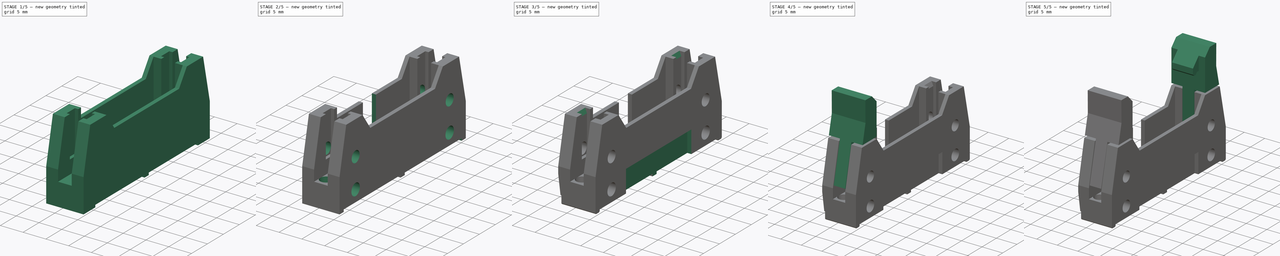
[diagram: build sequence overview — one tinted view per stage of 5, left to right]
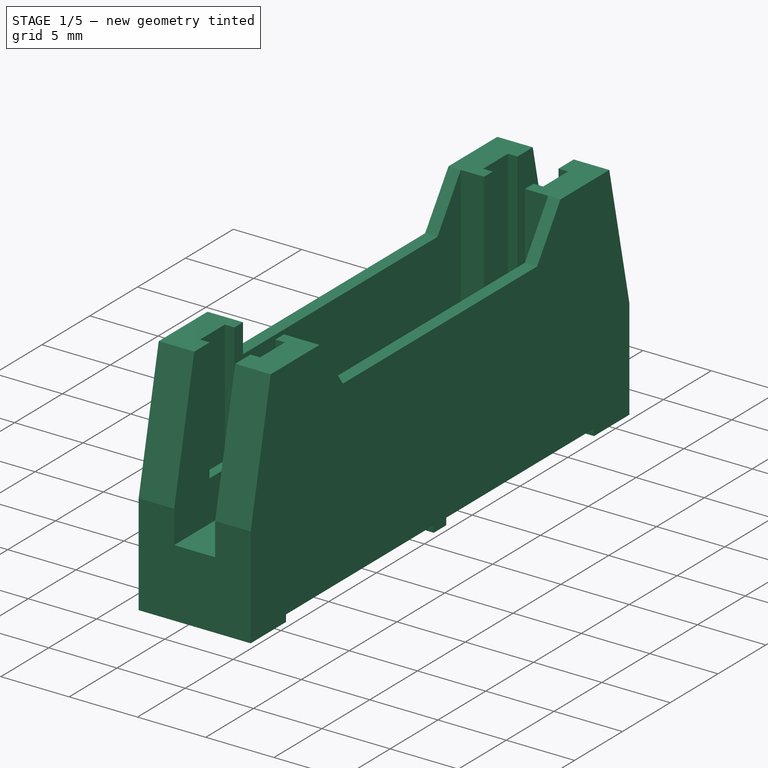
[diagram: stage 1 of 5 — iso view after this stage's code; geometry added in this stage tinted green]
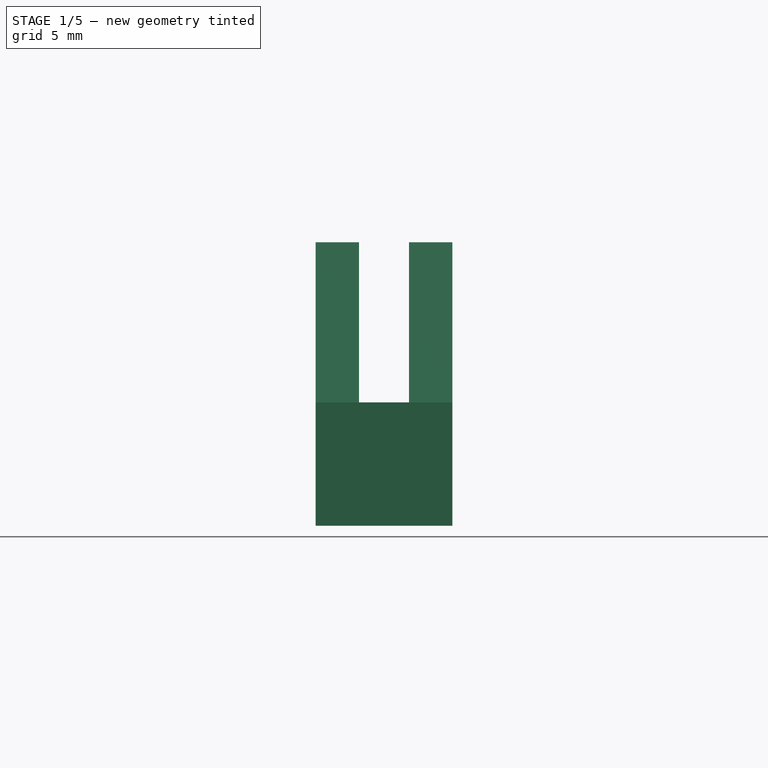
[diagram: stage 1 of 5 — front view after this stage's code; geometry added in this stage tinted green]
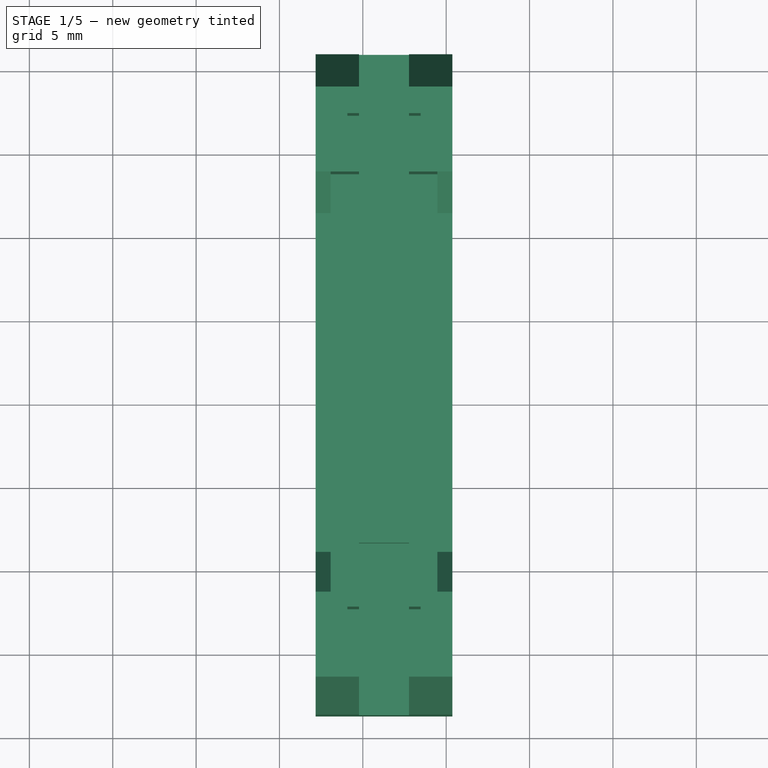
[diagram: stage 1 of 5 — top view after this stage's code; geometry added in this stage tinted green]
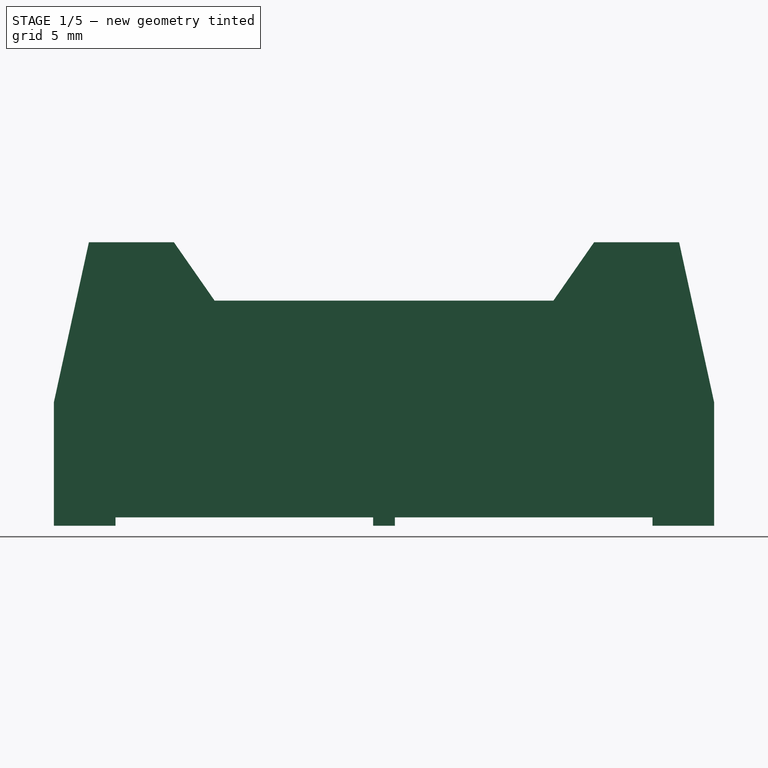
[diagram: stage 1 of 5 — right view after this stage's code; geometry added in this stage tinted green]
FCSTD DOCUMENT  (FreeCAD 1.0R38641 +468 (Git))
Label: XG4A-xx31-1
License: All rights reserved
objects: Sketcher::SketchObject×17, PartDesign::Pocket×13, PartDesign::Mirrored×5, PartDesign::Plane×4, PartDesign::Pad×4, PartDesign::Chamfer×4, PartDesign::Body×4, PartDesign::Line×2, Spreadsheet::Sheet×1, Part::FeaturePython×1, PartDesign::FeatureBase×1, Part::Mirroring×1, Part::Compound×1, Part::Cut×1
note: 123 computed .brp shape members not serialized (recipe doc carries the construction recipe); baked Part::Feature solids carry a one-line shape summary decoded from their .brp

FEATURE [Spreadsheet::Sheet] Spreadsheet  label="Master"
  cells = A1='Constants; A2='pins; B2(pins)=16; C2='Number of pins: 10, 14, 16, 20, 26, 30, 34, 40, 50, 60, 64; A3='pin_pitch; B3(pin_pitch)==2.54 mm; C3='Pin pitch; A5='height; B5(height)==17 mm; C5='Height of housing; A6='width; B6(width)==8.2 mm; C6='Width of housing; A8='Calculated; A9='pins row; B9(pins_row)==pins / 2; C9='Pins per row; A10='length mod; B10(len_mod)==pins == 16 ? -1 : (pins == 26 ? -1 : 0); A11='length total; B11(length_tot)==ceil(length_pin * 10) / 10 + 21.8 mm; C11='Dim A: Length of housing; A12='length opening; B12(length_open)==length_tot - 14.5 mm - len_mod * 0.1 mm; C12='Dim B: Length of opening; A13='length pin; B13(length_pin)==(pins_row - 1) * pin_pitch; C13='Dim C: Total with of pins; A14='length side hole; B14(length_hole)==length_tot - 10.2 mm - len_mod * 0.1 mm; C14='Dim D: Side hole/Eject lever pivot dimension; A15='length mount; B15(length_mnt)==length_tot - 4.1 mm - len_mod * 0.1 mm; C15='Dim E: Bottom mounting hole dimension; A17='center; B17(center)==length_pin / 2; C17='Center offset for pin 1 at origin
FEATURE [PartDesign::Line] DatumLine
  AttacherType = Attacher::AttachEngineLine
  Length = 20
  MapMode = 18
  Placement = pos=(1.27,-8.89,0) rot=(0,0,1;0rad)
  ResizeMode = 0
  expr: .Placement.Base.x = <<Master>>.pin_pitch / 2
  expr: .Placement.Base.y = -<<Master>>.center
FEATURE [PartDesign::Plane] DatumPlane
  AttachmentOffset = pos=(0,0,1.27) rot=(0,0,1;0rad)
  AttachmentSupport = -> [YZ_Plane]
  Length = 60
  MapMode = 5
  Placement = pos=(1.27,0,0) rot=(0.57735,0.57735,0.57735;2.0944rad)
  ResizeMode = 0
  Width = 60
  expr: .AttachmentOffset.Base.z = <<Master>>.pin_pitch / 2
FEATURE [PartDesign::Plane] DatumPlane001
  AttachmentOffset = pos=(0,0,8.89) rot=(0,0,1;0rad)
  AttachmentSupport = -> [XZ_Plane]
  Length = 60
  MapMode = 5
  Placement = pos=(0,-8.89,2e-15) rot=(1,0,0;1.5708rad)
  ResizeMode = 0
  Width = 60
  expr: .AttachmentOffset.Base.z = <<Master>>.center
FEATURE [PartDesign::Plane] DatumPlane002
  AttachmentOffset = pos=(0,0,17) rot=(0,0,1;0rad)
  AttachmentSupport = -> [XY_Plane]
  Length = 60
  MapMode = 5
  Placement = pos=(0,0,17) rot=(0,0,1;0rad)
  ResizeMode = 0
  Width = 60
  expr: .AttachmentOffset.Base.z = <<Master>>.height
FEATURE [Sketcher::SketchObject] Sketch
  ArcFitTolerance = 0
  AttachmentSupport = -> [DatumPlane]
  ExternalGeometry = -> [DatumLine]
  FullyConstrained = true
  MakeInternals = false
  MapMode = 5
  Placement = pos=(1.27,0,0) rot=(0.57735,0.57735,0.57735;2.0944rad)
  expr: Constraints[25] = <<Master>>.length_tot
  expr: Constraints[26] = <<Master>>.length_open
  expr: Constraints[27] = <<Master>>.height
  expr: Constraints[50] = <<Master>>.length_open - 4.88 mm
  expr: Constraints[67] = <<Master>>.length_tot - 3.7 mm * 2
  expr: Constraints[68] = <<Master>>.length_open + 5.1 mm * 2
  sketch-geometry (25):
    g0: LineSegment StartX=7.21 StartY=0.5 StartZ=0 EndX=-8.24 EndY=0.5 EndZ=0
    g1: LineSegment StartX=-24.99 StartY=0.5 StartZ=0 EndX=-24.99 EndY=0 EndZ=0
    g2: LineSegment StartX=-24.99 StartY=0 StartZ=0 EndX=-28.69 EndY=0 EndZ=0
    g3: LineSegment StartX=-28.69 StartY=0 StartZ=0 EndX=-28.69 EndY=7.4 EndZ=0
    g4: LineSegment StartX=-28.69 StartY=7.4 StartZ=0 EndX=-26.59 EndY=17 EndZ=0
    g5: LineSegment StartX=-26.59 StartY=17 StartZ=0 EndX=-21.49 EndY=17 EndZ=0
    g6: LineSegment StartX=-21.49 StartY=17 StartZ=0 EndX=-19.05 EndY=13.5 EndZ=0
    g7: LineSegment StartX=-19.05 StartY=13.5 StartZ=0 EndX=1.27 EndY=13.5 EndZ=0
    g8: LineSegment StartX=1.27 StartY=13.5 StartZ=0 EndX=3.71 EndY=17 EndZ=0
    g9: LineSegment StartX=3.71 StartY=17 StartZ=0 EndX=8.81 EndY=17 EndZ=0
    g10: LineSegment StartX=8.81 StartY=17 StartZ=0 EndX=10.91 EndY=7.4 EndZ=0
    g11: LineSegment StartX=10.91 StartY=7.4 StartZ=0 EndX=10.91 EndY=0 EndZ=0
    g12: LineSegment StartX=10.91 StartY=0 StartZ=0 EndX=7.21 EndY=0 EndZ=0
    g13: LineSegment StartX=7.21 StartY=0 StartZ=0 EndX=7.21 EndY=0.5 EndZ=0
    g14: LineSegment StartX=-9.54 StartY=0.5 StartZ=0 EndX=-9.54 EndY=0 EndZ=0
    g15: LineSegment StartX=-9.54 StartY=0 StartZ=0 EndX=-8.24 EndY=0 EndZ=0
    g16: LineSegment StartX=-8.24 StartY=0 StartZ=0 EndX=-8.24 EndY=0.5 EndZ=0
    g17: LineSegment StartX=-9.54 StartY=0.5 StartZ=0 EndX=-24.99 EndY=0.5 EndZ=0
    g18: LineSegment [constr] StartX=-19.05 StartY=7.4 StartZ=0 EndX=-19.05 EndY=13.5 EndZ=0
    g19: LineSegment [constr] StartX=1.27 StartY=13.5 StartZ=0 EndX=1.27 EndY=7.4 EndZ=0
    g20: LineSegment [constr] StartX=1.27 StartY=7.4 StartZ=0 EndX=-19.05 EndY=7.4 EndZ=0
    g21: LineSegment [constr] StartX=1.27 StartY=7.4 StartZ=0 EndX=10.91 EndY=7.4 EndZ=0
    g22: LineSegment [constr] StartX=-19.05 StartY=7.4 StartZ=0 EndX=-28.69 EndY=7.4 EndZ=0
    g23: LineSegment [constr] StartX=-21.49 StartY=17 StartZ=0 EndX=-8.89 EndY=17 EndZ=0
    g24: LineSegment [constr] StartX=-8.89 StartY=17 StartZ=0 EndX=3.71 EndY=17 EndZ=0
  constraints (69):
    c: Horizontal(g0)
    c: Coincident(g17,g1)
    c: Coincident(g1,g2)
    c: Horizontal(g2)
    c: Coincident(g2,g3)
    c: Coincident(g3,g4)
    c: Coincident(g4,g5)
    c: Horizontal(g5)
    c: Coincident(g5,g6)
    c: Coincident(g6,g7)
    c: Coincident(g7,g8)
    c: Coincident(g8,g9)
    c: Horizontal(g9)
    c: Coincident(g9,g10)
    c: Coincident(g10,g11)
    c: Vertical(g11)
    c: Coincident(g11,g12)
    c: Horizontal(g12)
    c: Coincident(g12,g13)
    c: Coincident(g13,g0)
    c: Vertical(g1)
    c: Vertical(g13)
    c: Vertical(g3)
    c: Equal(g2,g12)
    c: PointOnObject(g1,g-1)
    c: DistanceX(g2,g11) = 39.6
    c: DistanceX(g5,g8) = 25.2
    c: DistanceY(g2,g4) = 17
    c: Equal(g3,g11)
    c: Equal(g5,g9)
    c: DistanceY(g3) = 7.4
    c: Coincident(g14,g15)
    c: PointOnObject(g15,g-1)
    c: Coincident(g15,g16)
    c: Vertical(g16)
    c: Vertical(g14)
    c: Coincident(g0,g16)
    c: Coincident(g17,g14)
    c: Tangent(g0,g17)
    c: DistanceX(g15) = 1.3
    c: Horizontal(g15)
    c: Symmetric(g1,g12,g-3)
    c: Equal(g17,g0)
    c: Distance(g1,g1) = 0.5
    c: DistanceY(g11,g7) = 13.5
    c: Coincident(g18,g6)
    c: Vertical(g18)
    c: Coincident(g7,g19)
    c: Vertical(g19)
    c: Horizontal(g7)
    c: DistanceX(g20,g20) = 20.32
    c: Coincident(g21,g19)
    c: Coincident(g21,g10)
    c: Horizontal(g21)
    c: Coincident(g22,g18)
    c: Coincident(g22,g3)
    c: Horizontal(g22)
    c: Equal(g22,g21)
    c: Coincident(g18,g20)
    c: Coincident(g20,g19)
    c: Coincident(g23,g5)
    c: Horizontal(g23)
    c: Coincident(g24,g8)
    c: Horizontal(g24)
    c: Equal(g24,g23)
    c: Coincident(g23,g24)
    c: PointOnObject(g23,g-3)
    c: DistanceX(g1,g12) = 32.2
    c: DistanceX(g4,g9) = 35.4
FEATURE [PartDesign::Pad] Pad
  Direction = (1,0,0)
  Length = 8.2
  Length2 = 10
  Midplane = true
  Placement = pos=(1.27,0,0) rot=(0.57735,0.57735,0.57735;2.0944rad)
  Profile = -> Sketch
  ReferenceAxis = -> Sketch [N_Axis]
  Suppressed = false
  Type = 0
  expr: Length = <<Master>>.width
FEATURE [Sketcher::SketchObject] Sketch001
  ArcFitTolerance = 1e-06
  AttachmentSupport = -> [DatumPlane002]
  ExternalGeometry = -> [DatumLine]
  FullyConstrained = true
  MakeInternals = false
  MapMode = 5
  Placement = pos=(0,0,17) rot=(0,0,1;0rad)
  expr: Constraints[10] = <<Master>>.length_open
  sketch-geometry (4):
    g0: LineSegment StartX=-1.93 StartY=3.71 StartZ=0 EndX=-1.93 EndY=-21.49 EndZ=0
    g1: LineSegment StartX=-1.93 StartY=-21.49 StartZ=0 EndX=4.47 EndY=-21.49 EndZ=0
    g2: LineSegment StartX=4.47 StartY=-21.49 StartZ=0 EndX=4.47 EndY=3.71 EndZ=0
    g3: LineSegment StartX=4.47 StartY=3.71 StartZ=0 EndX=-1.93 EndY=3.71 EndZ=0
  constraints (11):
    c: Coincident(g0,g1)
    c: Coincident(g1,g2)
    c: Coincident(g2,g3)
    c: Coincident(g3,g0)
    c: Vertical(g0)
    c: Vertical(g2)
    c: Horizontal(g1)
    c: Horizontal(g3)
    c: Symmetric(g0,g2,g-3)
    c: Distance(g3,g3) = 6.4
    c: DistanceY(g0,g0) = 25.2
FEATURE [PartDesign::Pocket] Pocket
  BaseFeature = -> Pad
  Direction = (0,0,-1)
  Length = 9.6
  Length2 = 5
  Placement = pos=(1.27,0,0) rot=(0.57735,0.57735,0.57735;2.0944rad)
  Profile = -> Sketch001
  ReferenceAxis = -> Sketch001 [N_Axis]
  Suppressed = false
  Type = 0
FEATURE [Sketcher::SketchObject] Sketch002
  ArcFitTolerance = 1e-06
  AttachmentSupport = -> [DatumPlane002]
  ExternalGeometry = -> [DatumLine]
  FullyConstrained = true
  MakeInternals = false
  MapMode = 5
  Placement = pos=(0,0,17) rot=(0,0,1;0rad)
  expr: Constraints[13] = <<Master>>.length_tot / 2
  sketch-geometry (5):
    g0: LineSegment StartX=-0.23 StartY=10.91 StartZ=0 EndX=-0.23 EndY=0.61 EndZ=0
    g1: LineSegment StartX=-0.23 StartY=0.61 StartZ=0 EndX=2.77 EndY=0.61 EndZ=0
    g2: LineSegment StartX=2.77 StartY=0.61 StartZ=0 EndX=2.77 EndY=10.91 EndZ=0
    g3: LineSegment StartX=2.77 StartY=10.91 StartZ=0 EndX=-0.23 EndY=10.91 EndZ=0
    g4: LineSegment [constr] StartX=1.27 StartY=-8.89 StartZ=0 EndX=1.27 EndY=10.91 EndZ=0
  constraints (14):
    c: Coincident(g0,g1)
    c: Coincident(g1,g2)
    c: Coincident(g2,g3)
    c: Coincident(g3,g0)
    c: Vertical(g0)
    c: Vertical(g2)
    c: Horizontal(g1)
    c: Horizontal(g3)
    c: DistanceY(g0,g0) = 10.3
    c: Distance(g3,g3) = 3
    c: Coincident(g4,g-3)
    c: PointOnObject(g4,g3)
    c: Symmetric(g1,g0,g4)
    c: DistanceY(g4,g2) = 19.8
FEATURE [PartDesign::Pocket] Pocket001
  BaseFeature = -> Pocket
  Direction = (0,0,-1)
  Length = 12
  Length2 = 5
  Placement = pos=(1.27,0,0) rot=(0.57735,0.57735,0.57735;2.0944rad)
  Profile = -> Sketch002
  ReferenceAxis = -> Sketch002 [N_Axis]
  Suppressed = false
  Type = 0
FEATURE [PartDesign::Mirrored] Mirrored
  BaseFeature = -> Pocket001
  MirrorPlane = -> DatumPlane001
  Originals = -> [Pocket001]
  Placement = pos=(1.27,0,0) rot=(0.57735,0.57735,0.57735;2.0944rad)
  Suppressed = false
  TransformMode = 0
FEATURE [Sketcher::SketchObject] Sketch003
  ArcFitTolerance = 1e-06
  AttachmentSupport = -> [DatumPlane002]
  ExternalGeometry = -> [DatumLine]
  FullyConstrained = true
  MakeInternals = false
  MapMode = 5
  Placement = pos=(0,0,17) rot=(0,0,1;0rad)
  expr: Constraints[15] = <<Master>>.length_open / 2 + 0.9 mm
  sketch-geometry (6):
    g0: LineSegment StartX=-0.93 StartY=7.21 StartZ=0 EndX=-0.93 EndY=4.61 EndZ=0
    g1: LineSegment StartX=-0.93 StartY=4.61 StartZ=0 EndX=3.47 EndY=4.61 EndZ=0
    g2: LineSegment StartX=3.47 StartY=4.61 StartZ=0 EndX=3.47 EndY=7.21 EndZ=0
    g3: LineSegment StartX=3.47 StartY=7.21 StartZ=0 EndX=-0.93 EndY=7.21 EndZ=0
    g4: LineSegment [constr] StartX=1.27 StartY=-8.89 StartZ=0 EndX=1.27 EndY=4.61 EndZ=0
    g5: LineSegment [constr] StartX=1.27 StartY=4.61 StartZ=0 EndX=1.27 EndY=7.21 EndZ=0
  constraints (16):
    c: Coincident(g0,g1)
    c: Coincident(g1,g2)
    c: Coincident(g2,g3)
    c: Coincident(g3,g0)
    c: Vertical(g0)
    c: Vertical(g2)
    c: Horizontal(g1)
    c: Horizontal(g3)
    c: Coincident(g4,g-3)
    c: PointOnObject(g4,g1)
    c: Symmetric(g1,g0,g4)
    c: Distance(g3,g3) = 4.4
    c: Distance(g0,g0) = 2.6
    c: Coincident(g5,g4)
    c: Symmetric(g3,g3,g5)
    c: DistanceY(g4,g4) = 13.5
FEATURE [PartDesign::Pocket] Pocket002
  BaseFeature = -> Mirrored
  Direction = (0,0,-1)
  Length = 9
  Length2 = 5
  Placement = pos=(1.27,0,0) rot=(0.57735,0.57735,0.57735;2.0944rad)
  Profile = -> Sketch003
  ReferenceAxis = -> Sketch003 [N_Axis]
  Suppressed = false
  Type = 0
FEATURE [PartDesign::Mirrored] Mirrored001
  BaseFeature = -> Pocket002
  MirrorPlane = -> DatumPlane001
  Originals = -> [Pocket002]
  Placement = pos=(1.27,0,0) rot=(0.57735,0.57735,0.57735;2.0944rad)
  Suppressed = false
  TransformMode = 0
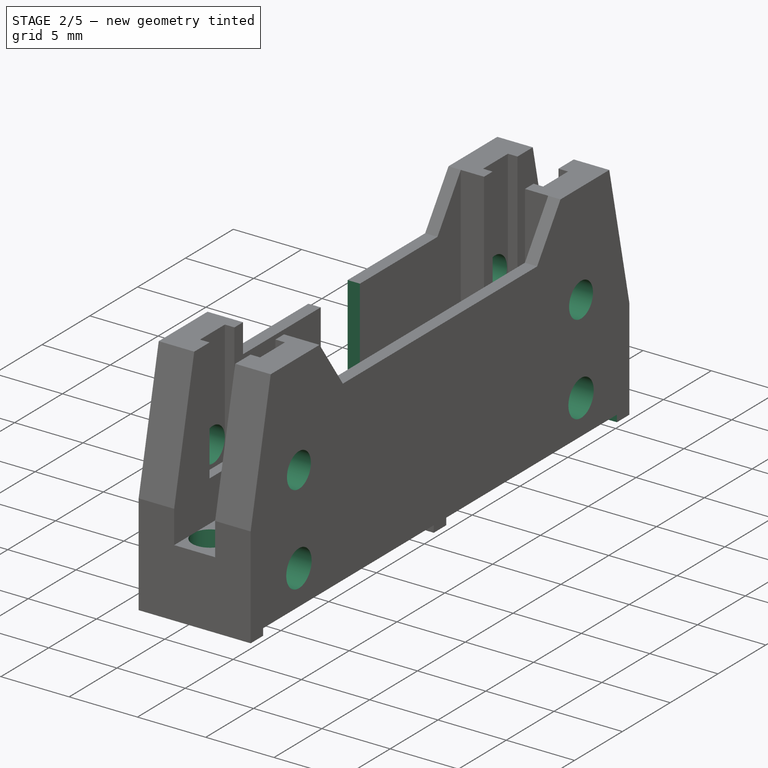
[diagram: stage 2 of 5 — iso view after this stage's code; geometry added in this stage tinted green]
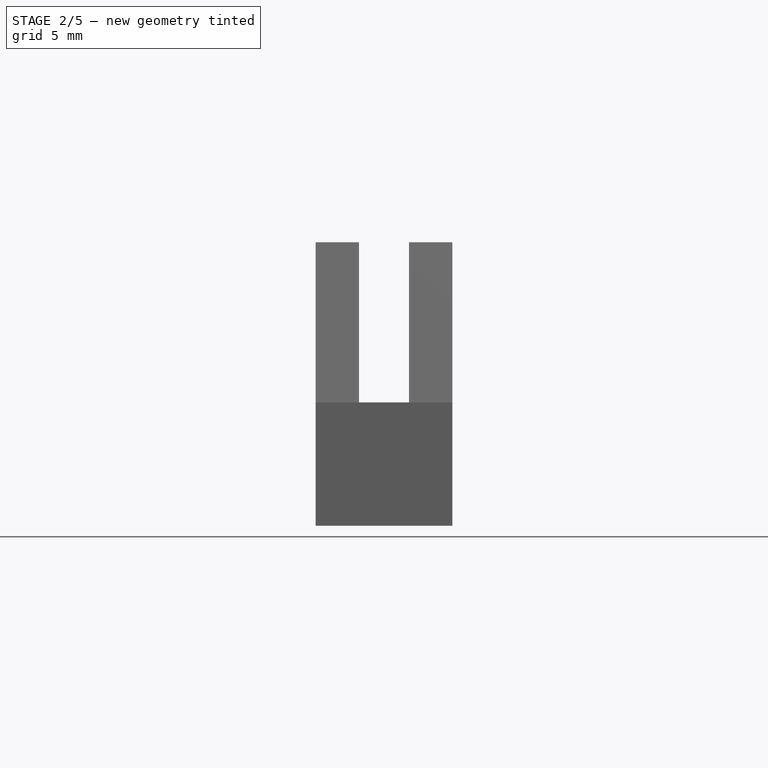
[diagram: stage 2 of 5 — front view after this stage's code; geometry added in this stage tinted green]
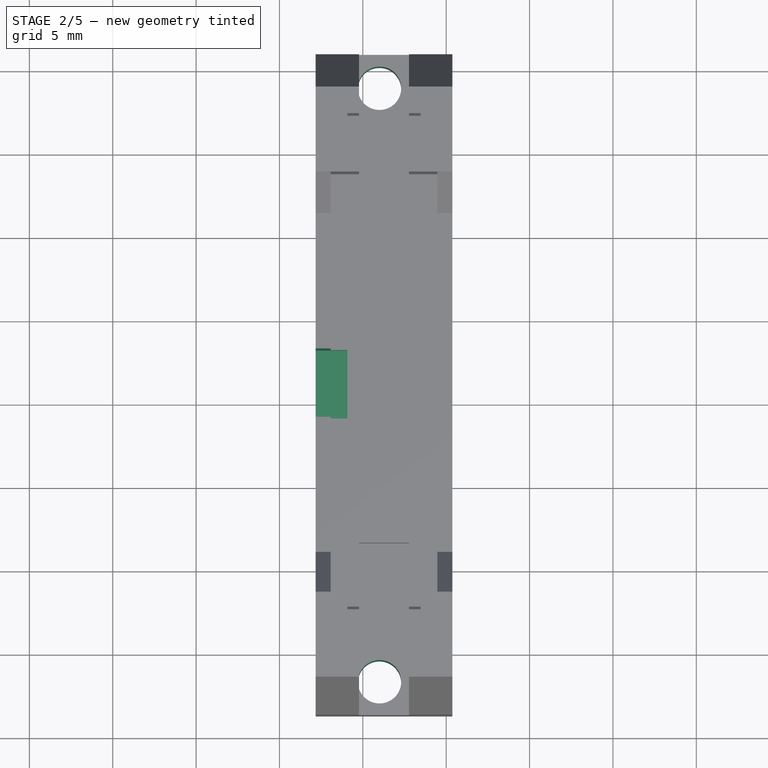
[diagram: stage 2 of 5 — top view after this stage's code; geometry added in this stage tinted green]
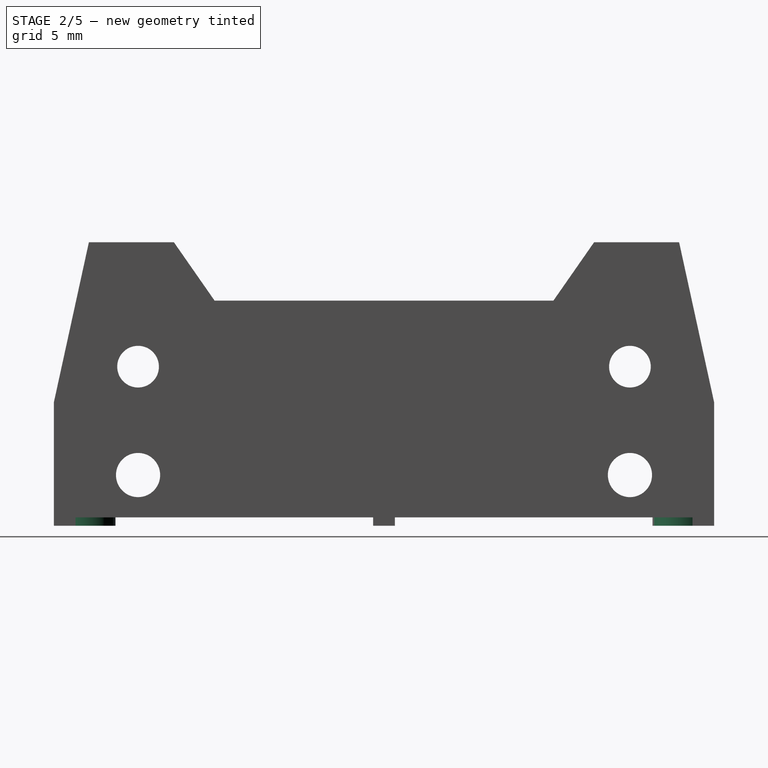
[diagram: stage 2 of 5 — right view after this stage's code; geometry added in this stage tinted green]
FEATURE [Sketcher::SketchObject] Sketch004
  ArcFitTolerance = 0
  AttachmentSupport = -> [DatumPlane]
  ExternalGeometry = -> [DatumLine]
  FullyConstrained = true
  MakeInternals = false
  MapMode = 5
  Placement = pos=(1.27,0,0) rot=(0.57735,0.57735,0.57735;2.0944rad)
  expr: Constraints[11] = <<Master>>.length_hole
  sketch-geometry (8):
    g0: Circle CenterX=-23.64 CenterY=3.04 CenterZ=0 NormalX=0 NormalY=0 NormalZ=1 AngleXU=0 Radius=1.325
    g1: Circle CenterX=-23.64 CenterY=9.54 CenterZ=0 NormalX=0 NormalY=0 NormalZ=1 AngleXU=0 Radius=1.25
    g2: Circle CenterX=5.86 CenterY=9.54 CenterZ=0 NormalX=0 NormalY=0 NormalZ=1 AngleXU=0 Radius=1.25
    g3: Circle CenterX=5.86 CenterY=3.04 CenterZ=0 NormalX=0 NormalY=0 NormalZ=1 AngleXU=0 Radius=1.325
    g4: LineSegment [constr] StartX=-23.64 StartY=9.54 StartZ=0 EndX=-23.64 EndY=0 EndZ=0
    g5: LineSegment [constr] StartX=5.86 StartY=9.54 StartZ=0 EndX=5.86 EndY=0 EndZ=0
    g6: LineSegment [constr] StartX=-23.64 StartY=3.04 StartZ=0 EndX=5.86 EndY=3.04 EndZ=0
    g7: LineSegment [constr] StartX=-23.64 StartY=9.54 StartZ=0 EndX=5.86 EndY=9.54 EndZ=0
  constraints (21):
    c: Vertical(g4)
    c: Vertical(g5)
    c: Equal(g3,g0)
    c: Radius(g3) = 1.325
    c: Horizontal(g6)
    c: Coincident(g6,g3)
    c: Coincident(g0,g6)
    c: PointOnObject(g0,g4)
    c: PointOnObject(g3,g5)
    c: PointOnObject(g5,g-1)
    c: DistanceY(g5,g3) = 3.04
    c: DistanceX(g6) = 29.5
    c: Coincident(g7,g1)
    c: Coincident(g7,g2)
    c: Horizontal(g7)
    c: DistanceY(g0,g1) = 6.5
    c: Coincident(g4,g1)
    c: Coincident(g5,g2)
    c: Equal(g1,g2)
    c: Radius(g2) = 1.25
    c: Symmetric(g4,g5,g-3)
FEATURE [PartDesign::Pocket] Pocket003
  BaseFeature = -> Mirrored001
  Direction = (-1,0,0)
  Length = 5
  Length2 = 5
  Midplane = true
  Placement = pos=(1.27,0,0) rot=(0.57735,0.57735,0.57735;2.0944rad)
  Profile = -> Sketch004
  ReferenceAxis = -> Sketch004 [N_Axis]
  Suppressed = false
  Type = 1
FEATURE [Sketcher::SketchObject] Sketch005
  ArcFitTolerance = 1e-06
  AttachmentSupport = -> [DatumPlane002]
  ExternalGeometry = -> [DatumLine]
  FullyConstrained = true
  MakeInternals = false
  MapMode = 5
  Placement = pos=(0,0,17) rot=(0,0,1;0rad)
  expr: Constraints[13] = <<Master>>.width / 2
  sketch-geometry (5):
    g0: LineSegment StartX=-2.83 StartY=-6.84 StartZ=0 EndX=-2.83 EndY=-10.94 EndZ=0
    g1: LineSegment StartX=-2.83 StartY=-10.94 StartZ=0 EndX=-0.93 EndY=-10.94 EndZ=0
    g2: LineSegment StartX=-0.93 StartY=-10.94 StartZ=0 EndX=-0.93 EndY=-6.84 EndZ=0
    g3: LineSegment StartX=-0.93 StartY=-6.84 StartZ=0 EndX=-2.83 EndY=-6.84 EndZ=0
    g4: LineSegment [constr] StartX=1.27 StartY=-8.89 StartZ=0 EndX=-2.83 EndY=-8.89 EndZ=0
  constraints (14):
    c: Coincident(g0,g1)
    c: Coincident(g1,g2)
    c: Coincident(g2,g3)
    c: Coincident(g3,g0)
    c: Vertical(g0)
    c: Vertical(g2)
    c: Horizontal(g1)
    c: Horizontal(g3)
    c: Coincident(g4,g-3)
    c: PointOnObject(g4,g0)
    c: DistanceY(g0,g0) = 4.1
    c: Distance(g3,g3) = 1.9
    c: Symmetric(g0,g0,g4)
    c: DistanceX(g0,g4) = 4.1
FEATURE [PartDesign::Pocket] Pocket004
  BaseFeature = -> Pocket003
  Direction = (0,0,-1)
  Length = 11.1
  Length2 = 5
  Placement = pos=(1.27,0,0) rot=(0.57735,0.57735,0.57735;2.0944rad)
  Profile = -> Sketch005
  ReferenceAxis = -> Sketch005 [N_Axis]
  Suppressed = false
  Type = 0
FEATURE [Sketcher::SketchObject] Sketch006
  ArcFitTolerance = 0
  AttachmentSupport = -> [XY_Plane]
  ExternalGeometry = -> [DatumLine]
  FullyConstrained = true
  MakeInternals = false
  MapMode = 5
  expr: Constraints[1] = <<Master>>.length_mnt / 2
  sketch-geometry (1):
    g0: Circle CenterX=1 CenterY=8.91 CenterZ=0 NormalX=0 NormalY=0 NormalZ=1 AngleXU=0 Radius=1.3
  constraints (3):
    c: Diameter(g0) = 2.6
    c: DistanceY(g-3,g0) = 17.8
    c: DistanceX(g0,g-3) = 0.27
FEATURE [PartDesign::Pocket] Pocket005
  BaseFeature = -> Pocket004
  Direction = (0,0,-1)
  Length = 5
  Length2 = 5
  Placement = pos=(1.27,0,0) rot=(0.57735,0.57735,0.57735;2.0944rad)
  Profile = -> Sketch006
  ReferenceAxis = -> Sketch006 [N_Axis]
  Reversed = true
  Suppressed = false
  Type = 0
FEATURE [PartDesign::Mirrored] Mirrored002
  BaseFeature = -> Pocket005
  MirrorPlane = -> DatumPlane001
  Originals = -> [Pocket005]
  Placement = pos=(1.27,0,0) rot=(0.57735,0.57735,0.57735;2.0944rad)
  Suppressed = false
  TransformMode = 0
FEATURE [Sketcher::SketchObject] Sketch014
  ArcFitTolerance = 0
  AttachmentSupport = -> [XY_Plane]
  ExternalGeometry = -> [DatumLine]
  FullyConstrained = true
  MakeInternals = false
  MapMode = 5
  expr: Constraints[19] = <<Master>>.width
  expr: Constraints[21] = <<Master>>.length_tot / 2
  expr: Constraints[22] = <<Master>>.length_mnt / 2
  sketch-geometry (10):
    g0: ArcOfCircle CenterX=1 CenterY=8.91 CenterZ=0 NormalX=0 NormalY=0 NormalZ=1 AngleXU=0 Radius=1.7 StartAngle=2.7172 EndAngle=6.70758
    g1: LineSegment StartX=-0.549193 StartY=9.61 StartZ=0 EndX=-2.83 EndY=9.61 EndZ=0
    g2: LineSegment StartX=-2.83 StartY=9.61 StartZ=0 EndX=-2.83 EndY=6.21 EndZ=0
    g3: LineSegment StartX=-2.83 StartY=6.21 StartZ=0 EndX=5.37 EndY=6.21 EndZ=0
    g4: LineSegment StartX=5.37 StartY=6.21 StartZ=0 EndX=5.37 EndY=9.61 EndZ=0
    g5: LineSegment StartX=5.37 StartY=9.61 StartZ=0 EndX=2.54919 EndY=9.61 EndZ=0
    g6: LineSegment [constr] StartX=-0.549193 StartY=9.61 StartZ=0 EndX=2.54919 EndY=9.61 EndZ=0
    g7: LineSegment [constr] StartX=1.27 StartY=-8.89 StartZ=0 EndX=1.27 EndY=9.61 EndZ=0
    g8: LineSegment [constr] StartX=-2.83 StartY=9.61 StartZ=0 EndX=-2.83 EndY=10.91 EndZ=0
    g9: LineSegment [constr] StartX=-2.83 StartY=7.21 StartZ=0 EndX=1 EndY=7.21 EndZ=0
  constraints (29):
    c: Horizontal(g1)
    c: Coincident(g1,g2)
    c: Vertical(g2)
    c: Coincident(g2,g3)
    c: Horizontal(g3)
    c: Coincident(g3,g4)
    c: Vertical(g4)
    c: Coincident(g4,g5)
    c: Horizontal(g5)
    c: Coincident(g6,g1)
    c: Coincident(g6,g5)
    c: Horizontal(g6)
    c: Coincident(g7,g-3)
    c: PointOnObject(g7,g6)
    c: Coincident(g0,g5)
    c: Coincident(g0,g1)
    c: Coincident(g8,g1)
    c: Vertical(g8)
    c: Symmetric(g2,g3,g7)
    c: DistanceX(g3,g3) = 8.2
    c: Distance(g8,g8) = 1.3
    c: DistanceY(g7,g8) = 19.8
    c: DistanceY(g7,g0) = 17.8
    c: DistanceX(g0,g7) = 0.27
    c: PointOnObject(g9,g2)
    c: Tangent(g9,g0) = -1.5708
    c: Horizontal(g9)
    c: DistanceY(g9,g8) = 3.7
    c: DistanceY(g2,g9) = 1
FEATURE [PartDesign::Pocket] Pocket006
  BaseFeature = -> Mirrored002
  Direction = (0,0,-1)
  Length = 0.5
  Length2 = 5
  Placement = pos=(1.27,0,0) rot=(0.57735,0.57735,0.57735;2.0944rad)
  Profile = -> Sketch014
  ReferenceAxis = -> Sketch014 [N_Axis]
  Reversed = true
  Suppressed = false
  Type = 0
FEATURE [PartDesign::Mirrored] Mirrored003
  BaseFeature = -> Pocket006
  MirrorPlane = -> DatumPlane001
  Originals = -> [Pocket006]
  Placement = pos=(1.27,0,0) rot=(0.57735,0.57735,0.57735;2.0944rad)
  Suppressed = false
  TransformMode = 0
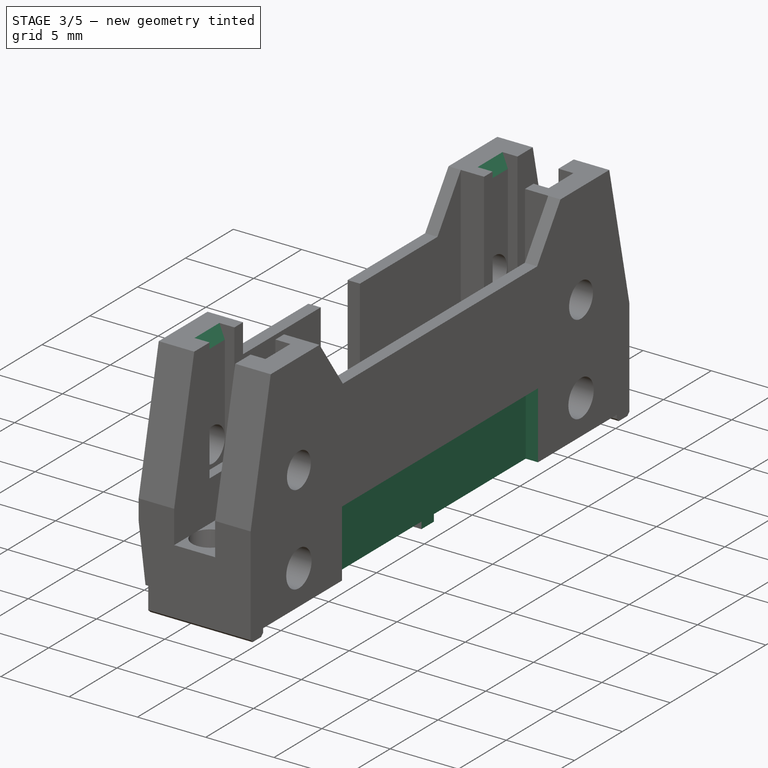
[diagram: stage 3 of 5 — iso view after this stage's code; geometry added in this stage tinted green]
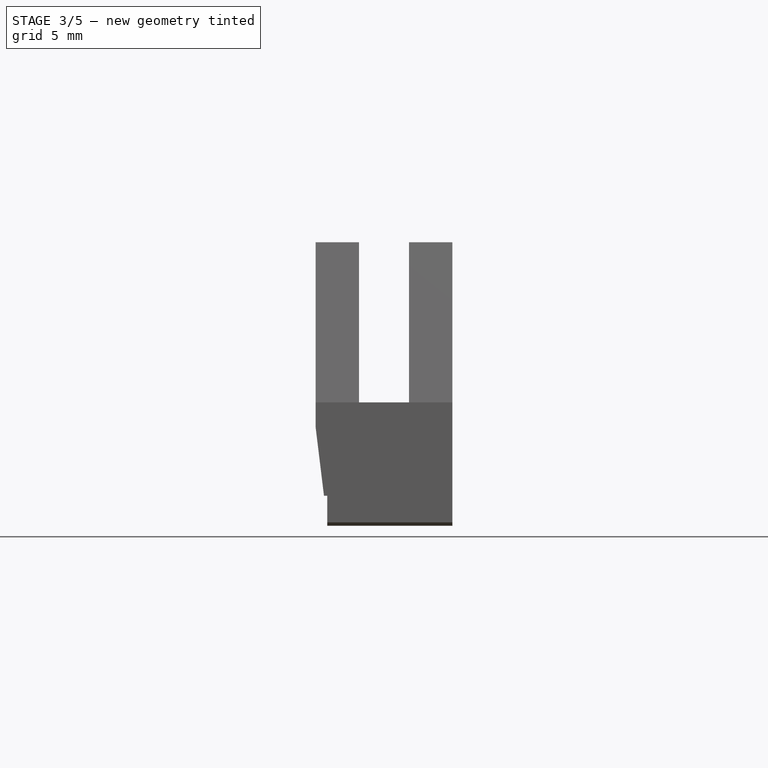
[diagram: stage 3 of 5 — front view after this stage's code; geometry added in this stage tinted green]
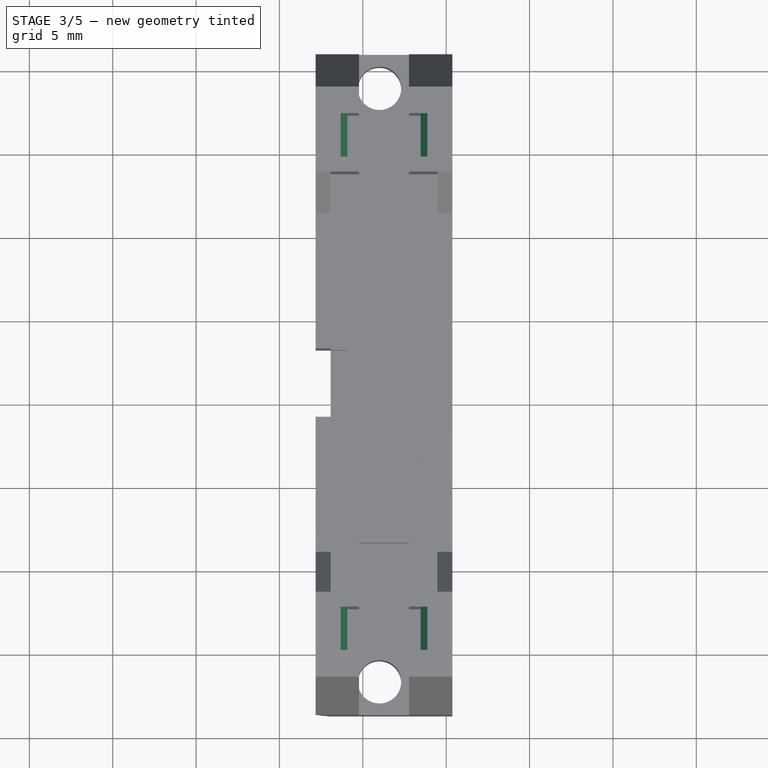
[diagram: stage 3 of 5 — top view after this stage's code; geometry added in this stage tinted green]
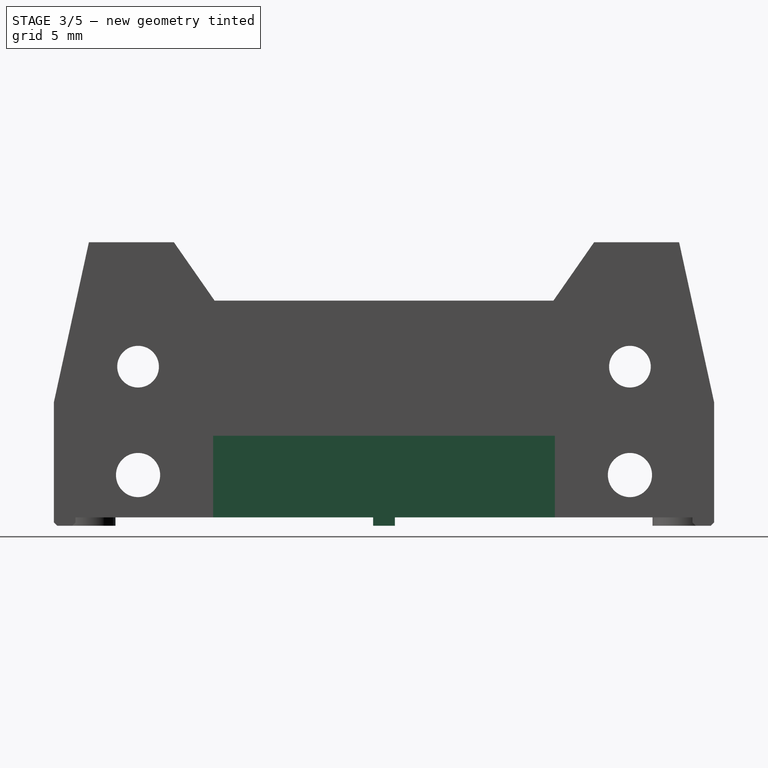
[diagram: stage 3 of 5 — right view after this stage's code; geometry added in this stage tinted green]
FEATURE [Sketcher::SketchObject] Sketch011
  ArcFitTolerance = 0
  AttachmentOffset = pos=(0,0,4.1) rot=(0,0,1;0rad)
  AttachmentSupport = -> [DatumPlane]
  ExternalGeometry = -> [DatumLine]
  FullyConstrained = true
  MakeInternals = false
  MapMode = 2
  Placement = pos=(5.37,0,0) rot=(0.57735,0.57735,0.57735;2.0944rad)
  expr: .AttachmentOffset.Base.z = <<Master>>.width / 2
  expr: Constraints[6] = <<Master>>.length_tot - 19.1 mm
  sketch-geometry (4):
    g0: LineSegment StartX=-19.14 StartY=5.4 StartZ=0 EndX=1.36 EndY=5.4 EndZ=0
    g1: LineSegment StartX=1.36 StartY=5.4 StartZ=0 EndX=1.36 EndY=0 EndZ=0
    g2: LineSegment StartX=1.36 StartY=0 StartZ=0 EndX=-19.14 EndY=0 EndZ=0
    g3: LineSegment StartX=-19.14 StartY=0 StartZ=0 EndX=-19.14 EndY=5.4 EndZ=0
  constraints (11):
    c: Coincident(g0,g1)
    c: Coincident(g1,g2)
    c: Coincident(g2,g3)
    c: Coincident(g3,g0)
    c: Vertical(g1)
    c: Vertical(g3)
    c: DistanceX(g0) = 20.5
    c: Horizontal(g0)
    c: PointOnObject(g2,g-1)
    c: Symmetric(g2,g1,g-3)
    c: Distance(g3,g3) = 5.4
FEATURE [PartDesign::Pocket] Pocket007
  BaseFeature = -> Mirrored003
  Direction = (-1,0,0)
  Length = 0.9
  Length2 = 5
  Placement = pos=(1.27,0,0) rot=(0.57735,0.57735,0.57735;2.0944rad)
  Profile = -> Sketch011
  ReferenceAxis = -> Sketch011 [N_Axis]
  Suppressed = false
  Type = 0
FEATURE [Sketcher::SketchObject] Sketch007
  ArcFitTolerance = 0
  AttachmentOffset = pos=(0,0,-4.1) rot=(0,0,1;0rad)
  AttachmentSupport = -> [DatumPlane]
  ExternalGeometry = -> [DatumLine]
  FullyConstrained = true
  MakeInternals = false
  MapMode = 5
  Placement = pos=(-2.83,0,0) rot=(0.57735,0.57735,0.57735;2.0944rad)
  expr: .AttachmentOffset.Base.z = -<<Master>>.width / 2
  expr: Constraints[10] = <<Master>>.length_hole - 5.2 mm
  sketch-geometry (4):
    g0: LineSegment StartX=-21.04 StartY=5.9 StartZ=0 EndX=3.26 EndY=5.9 EndZ=0
    g1: LineSegment StartX=3.26 StartY=5.9 StartZ=0 EndX=3.26 EndY=0 EndZ=0
    g2: LineSegment StartX=3.26 StartY=0 StartZ=0 EndX=-21.04 EndY=0 EndZ=0
    g3: LineSegment StartX=-21.04 StartY=0 StartZ=0 EndX=-21.04 EndY=5.9 EndZ=0
  constraints (11):
    c: Coincident(g0,g1)
    c: Coincident(g1,g2)
    c: Coincident(g2,g3)
    c: Coincident(g3,g0)
    c: Horizontal(g0)
    c: Vertical(g1)
    c: Vertical(g3)
    c: Symmetric(g1,g2,g-3)
    c: Distance(g3,g3) = 5.9
    c: PointOnObject(g2,g-1)
    c: DistanceX(g2,g2) = 24.3
FEATURE [PartDesign::Pocket] Pocket008
  BaseFeature = -> Pocket007
  Direction = (-1,0,0)
  Length = 0.9
  Length2 = 5
  Placement = pos=(1.27,0,0) rot=(0.57735,0.57735,0.57735;2.0944rad)
  Profile = -> Sketch007
  ReferenceAxis = -> Sketch007 [N_Axis]
  Reversed = true
  Suppressed = false
  Type = 0
FEATURE [Sketcher::SketchObject] Sketch009
  ArcFitTolerance = 0
  AttachmentOffset = pos=(0,0,-4.1) rot=(0,0,1;0rad)
  AttachmentSupport = -> [DatumPlane]
  ExternalGeometry = -> [DatumLine]
  FullyConstrained = true
  MakeInternals = false
  MapMode = 5
  Placement = pos=(-2.83,0,0) rot=(0.57735,0.57735,0.57735;2.0944rad)
  expr: .AttachmentOffset.Base.z = -<<Master>>.width / 2
  expr: Constraints[25] = <<Master>>.length_hole
  sketch-geometry (10):
    g0: LineSegment StartX=-23.64 StartY=5.9 StartZ=0 EndX=-26.24 EndY=4.39889 EndZ=0
    g1: LineSegment StartX=-26.24 StartY=4.39889 StartZ=0 EndX=-26.24 EndY=0 EndZ=0
    g2: LineSegment StartX=-26.24 StartY=0 StartZ=0 EndX=-21.04 EndY=0 EndZ=0
    g3: LineSegment StartX=-21.04 StartY=0 StartZ=0 EndX=-21.04 EndY=4.39889 EndZ=0
    g4: LineSegment StartX=-21.04 StartY=4.39889 StartZ=0 EndX=-23.64 EndY=5.9 EndZ=0
    g5: LineSegment [constr] StartX=-23.64 StartY=5.9 StartZ=0 EndX=-21.04 EndY=5.9 EndZ=0
    g6: LineSegment [constr] StartX=-21.04 StartY=5.9 StartZ=0 EndX=-21.04 EndY=4.39889 EndZ=0
    g7: LineSegment [constr] StartX=-21.04 StartY=4.39889 StartZ=0 EndX=-26.24 EndY=4.39889 EndZ=0
    g8: LineSegment [constr] StartX=-23.64 StartY=5.9 StartZ=0 EndX=-23.64 EndY=3.04 EndZ=0
    g9: LineSegment [constr] StartX=-23.64 StartY=3.04 StartZ=0 EndX=5.86 EndY=3.04 EndZ=0
  constraints (27):
    c: Vertical(g1)
    c: Coincident(g1,g2)
    c: Horizontal(g2)
    c: Coincident(g2,g3)
    c: Vertical(g3)
    c: Coincident(g4,g0)
    c: Coincident(g0,g5)
    c: Vertical(g6)
    c: Coincident(g6,g7)
    c: Horizontal(g7)
    c: Coincident(g8,g0)
    c: Vertical(g8)
    c: Horizontal(g5)
    c: Equal(g4,g0)
    c: Angle(g4,g5) = 0.523599
    c: PointOnObject(g2,g-1)
    c: Coincident(g5,g6)
    c: Coincident(g3,g4)
    c: Coincident(g3,g6)
    c: Coincident(g7,g0)
    c: Coincident(g7,g1)
    c: Distance(g2,g2) = 5.2
    c: DistanceY(g1,g0) = 5.9
    c: Coincident(g9,g8)
    c: Symmetric(g9,g8,g-3)
    c: DistanceX(g9,g9) = 29.5
    c: DistanceY(g1,g8) = 3.04
FEATURE [PartDesign::Pocket] Pocket009
  BaseFeature = -> Pocket008
  Direction = (-1,0,0)
  Length = 1.95
  Length2 = 5
  Placement = pos=(1.27,0,0) rot=(0.57735,0.57735,0.57735;2.0944rad)
  Profile = -> Sketch009
  ReferenceAxis = -> Sketch009 [N_Axis]
  Reversed = true
  Suppressed = false
  Type = 0
FEATURE [PartDesign::Mirrored] Mirrored004
  BaseFeature = -> Pocket009
  MirrorPlane = -> DatumPlane001
  Originals = -> [Pocket009]
  Placement = pos=(1.27,0,0) rot=(0.57735,0.57735,0.57735;2.0944rad)
  Suppressed = false
  TransformMode = 0
FEATURE [Sketcher::SketchObject] Sketch010
  ArcFitTolerance = 0
  AttachmentSupport = -> [DatumPlane001]
  ExternalGeometry = -> [DatumLine]
  FullyConstrained = true
  MakeInternals = false
  MapMode = 5
  Placement = pos=(0,-8.89,2e-15) rot=(1,0,0;1.5708rad)
  expr: Constraints[16] = <<Master>>.width / 2
  sketch-geometry (6):
    g0: LineSegment StartX=-2.83 StartY=5.9 StartZ=0 EndX=-2.83 EndY=0 EndZ=0
    g1: LineSegment StartX=-2.83 StartY=0 StartZ=0 EndX=-2.13 EndY=0 EndZ=0
    g2: LineSegment StartX=-2.13 StartY=0 StartZ=0 EndX=-2.13 EndY=1.8 EndZ=0
    g3: LineSegment StartX=-2.13 StartY=1.8 StartZ=0 EndX=-2.33 EndY=1.8 EndZ=0
    g4: LineSegment StartX=-2.33 StartY=1.8 StartZ=0 EndX=-2.83 EndY=5.9 EndZ=0
    g5: LineSegment [constr] StartX=-2.13 StartY=0 StartZ=0 EndX=1.27 EndY=0 EndZ=0
  constraints (18):
    c: Vertical(g0)
    c: Coincident(g0,g1)
    c: Coincident(g1,g2)
    c: Coincident(g2,g3)
    c: Coincident(g3,g4)
    c: Coincident(g4,g0)
    c: Horizontal(g3)
    c: Vertical(g2)
    c: Horizontal(g1)
    c: DistanceY(g2,g2) = 1.8
    c: DistanceY(g0,g0) = 5.9
    c: DistanceX(g1,g1) = 0.7
    c: Distance(g3,g3) = 0.2
    c: Coincident(g5,g1)
    c: Horizontal(g5)
    c: PointOnObject(g-1,g5)
    c: DistanceX(g0,g5) = 4.1
    c: PointOnObject(g5,g-3)
FEATURE [PartDesign::Pocket] Pocket010
  BaseFeature = -> Mirrored004
  Direction = (0,1,-2e-16)
  Length = 5
  Length2 = 5
  Midplane = true
  Placement = pos=(1.27,0,0) rot=(0.57735,0.57735,0.57735;2.0944rad)
  Profile = -> Sketch010
  ReferenceAxis = -> Sketch010 [N_Axis]
  Suppressed = false
  Type = 1
FEATURE [PartDesign::Chamfer] Chamfer002
  Angle = 45
  Base = -> Pocket010 [Edge292,Edge320,Edge113,Edge102]
  BaseFeature = -> Pocket010
  ChamferType = 1
  FlipDirection = false
  Placement = pos=(1.27,0,0) rot=(0.57735,0.57735,0.57735;2.0944rad)
  Size = 0.4
  Size2 = 1
  SupportTransform = false
  Suppressed = false
  UseAllEdges = false
FEATURE [PartDesign::Chamfer] Chamfer003
  Angle = 45
  Base = -> Chamfer002 [Edge81,Edge108,Edge109,Edge136,Edge139,Edge130]
  BaseFeature = -> Chamfer002
  ChamferType = 0
  FlipDirection = false
  Placement = pos=(1.27,0,0) rot=(0.57735,0.57735,0.57735;2.0944rad)
  Refine = true
  Size = 0.2
  Size2 = 1
  SupportTransform = false
  Suppressed = false
  UseAllEdges = false
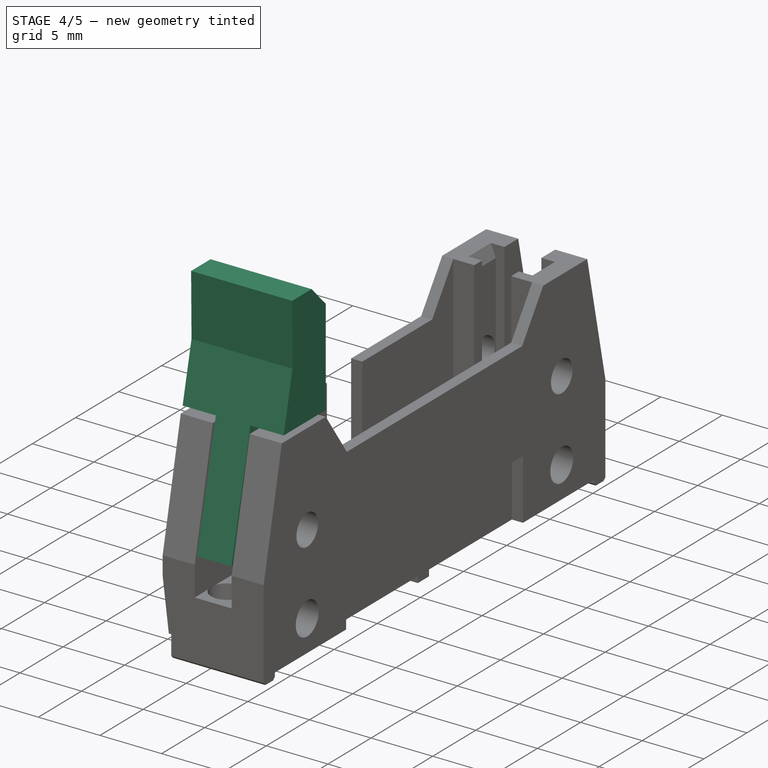
[diagram: stage 4 of 5 — iso view after this stage's code; geometry added in this stage tinted green]
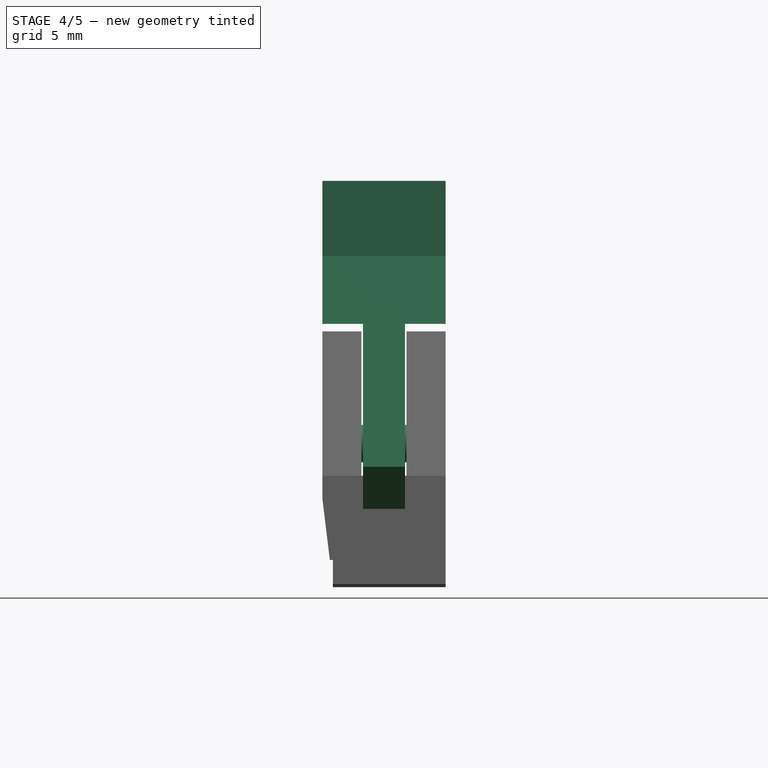
[diagram: stage 4 of 5 — front view after this stage's code; geometry added in this stage tinted green]
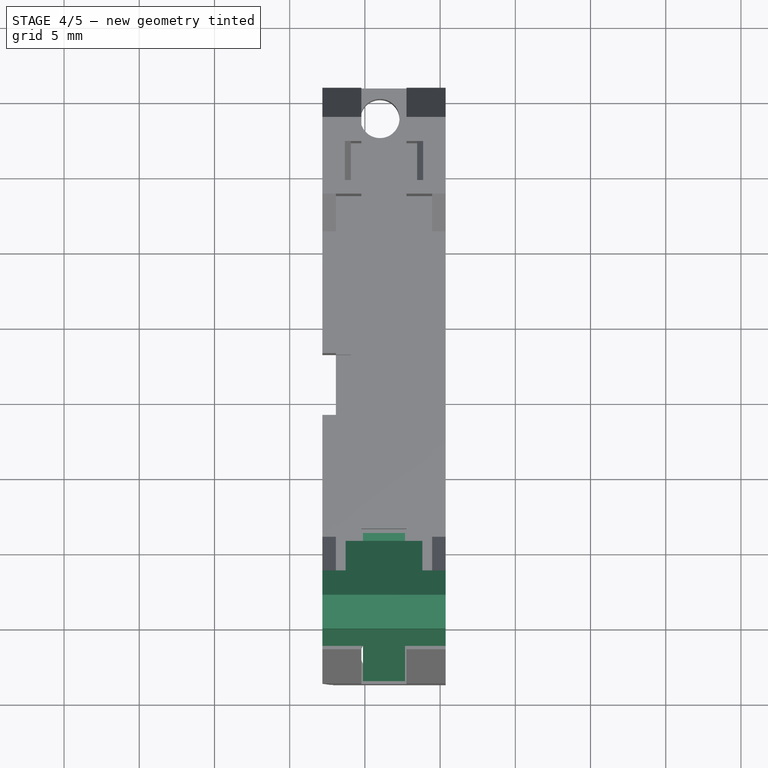
[diagram: stage 4 of 5 — top view after this stage's code; geometry added in this stage tinted green]
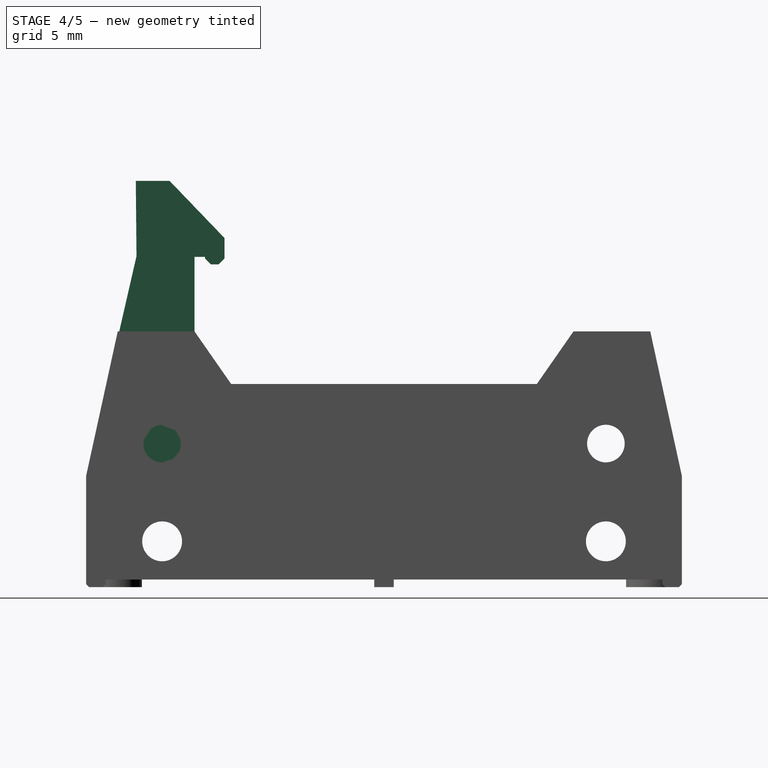
[diagram: stage 4 of 5 — right view after this stage's code; geometry added in this stage tinted green]
FEATURE [PartDesign::Body] Body002
  AllowCompound = false
  Group = -> [Clone]
  Origin = -> Origin002
  Tip = -> Clone
FEATURE [PartDesign::Line] DatumLine001
  AttacherType = Attacher::AttachEngineLine
  Length = 20
  MapMode = 18
  Placement = pos=(1.27,-8.89,0) rot=(0,0,1;0rad)
  ResizeMode = 0
  expr: .Placement.Base.x = <<Master>>.pin_pitch / 2
  expr: .Placement.Base.y = -<<Master>>.center
FEATURE [PartDesign::Plane] DatumPlane003
  AttachmentOffset = pos=(0,0,1.27) rot=(0,0,1;0rad)
  AttachmentSupport = -> [YZ_Plane003]
  Length = 60
  MapMode = 5
  Placement = pos=(1.27,0,0) rot=(0.57735,0.57735,0.57735;2.0944rad)
  ResizeMode = 0
  Width = 60
  expr: .AttachmentOffset.Base.z = <<Master>>.pin_pitch / 2
FEATURE [Sketcher::SketchObject] Sketch016
  ArcFitTolerance = 0
  AttachmentSupport = -> [DatumPlane003]
  ExternalGeometry = -> [DatumLine001]
  FullyConstrained = true
  MakeInternals = false
  MapMode = 5
  Placement = pos=(1.27,0,0) rot=(0.57735,0.57735,0.57735;2.0944rad)
  expr: Constraints[47] = <<Master>>.length_tot / 2
  sketch-geometry (19):
    g0: LineSegment StartX=0.91 StartY=7.4 StartZ=0 EndX=3.71 EndY=7.4 EndZ=0
    g1: LineSegment StartX=3.71 StartY=7.4 StartZ=0 EndX=3.71 EndY=21.95 EndZ=0
    g2: LineSegment StartX=3.71 StartY=21.95 StartZ=0 EndX=3.01 EndY=21.95 EndZ=0
    g3: LineSegment StartX=3.01 StartY=21.95 StartZ=0 EndX=3.01 EndY=21.45 EndZ=0
    g4: LineSegment StartX=1.71 StartY=21.45 StartZ=0 EndX=1.71 EndY=23.2 EndZ=0
    g5: LineSegment StartX=1.71 StartY=23.2 StartZ=0 EndX=5.36 EndY=27 EndZ=0
    g6: LineSegment StartX=8.71 StartY=17 StartZ=0 EndX=10.7725 EndY=8 EndZ=0
    g7: LineSegment StartX=5.86 StartY=5.2 StartZ=0 EndX=3.11 EndY=5.2 EndZ=0
    g8: LineSegment StartX=1.71 StartY=21.45 StartZ=0 EndX=3.01 EndY=21.45 EndZ=0
    g9: LineSegment StartX=10.7725 StartY=8 StartZ=0 EndX=5.86 EndY=5.2 EndZ=0
    g10: ArcOfCircle CenterX=3.11 CenterY=7.4 CenterZ=0 NormalX=0 NormalY=0 NormalZ=1 AngleXU=0 Radius=2.2 StartAngle=3.14159 EndAngle=4.71239
    g11: LineSegment StartX=7.61 StartY=27 StartZ=0 EndX=5.36 EndY=27 EndZ=0
    g12: LineSegment StartX=7.61 StartY=27 StartZ=0 EndX=7.56417 EndY=22 EndZ=0
    g13: LineSegment StartX=7.56417 StartY=22 StartZ=0 EndX=8.71 EndY=17 EndZ=0
    g14: LineSegment [constr] StartX=8.71 StartY=17 StartZ=0 EndX=3.71 EndY=17 EndZ=0
    g15: LineSegment [constr] StartX=10.7725 StartY=8 StartZ=0 EndX=10.91 EndY=7.4 EndZ=0
    g16: LineSegment [constr] StartX=3.71 StartY=7.4 StartZ=0 EndX=10.91 EndY=7.4 EndZ=0
    g17: LineSegment [constr] StartX=-8.89 StartY=0 StartZ=0 EndX=10.91 EndY=0 EndZ=0
    g18: LineSegment [constr] StartX=10.91 StartY=0 StartZ=0 EndX=10.91 EndY=7.4 EndZ=0
  constraints (57):
    c: Horizontal(g0)
    c: Coincident(g0,g1)
    c: Vertical(g1)
    c: Coincident(g1,g2)
    c: Horizontal(g2)
    c: Coincident(g2,g3)
    c: Coincident(g4,g5)
    c: Horizontal(g7)
    c: Coincident(g3,g8)
    c: Coincident(g4,g8)
    c: Coincident(g6,g9)
    c: Coincident(g7,g9)
    c: Coincident(g7,g10)
    c: Horizontal(g11)
    c: Coincident(g5,g11)
    c: Coincident(g11,g12)
    c: Coincident(g12,g13)
    c: Coincident(g6,g13)
    c: Coincident(g0,g10)
    c: Perpendicular(g10,g0)
    c: Tangent(g10,g7)
    c: Vertical(g4)
    c: Horizontal(g8)
    c: Vertical(g3)
    c: DistanceY(g-1,g5) = 27
    c: DistanceY(g-1,g7) = 5.2
    c: DistanceY(g-1,g0) = 7.4
    c: Coincident(g14,g6)
    c: PointOnObject(g14,g1)
    c: Horizontal(g14)
    c: Coincident(g15,g6)
    c: Parallel(g15,g6)
    c: DistanceY(g-1,g14) = 17
    c: Parallel(g13,g6)
    c: Coincident(g16,g0)
    c: Coincident(g16,g15)
    c: Horizontal(g16)
    c: DistanceX(g8) = 1.3
    c: DistanceY(g4) = 1.75
    c: DistanceY(g4,g5) = 3.8
    c: DistanceY(g12,g11) = 5
    c: Horizontal(g17)
    c: Coincident(g17,g18)
    c: Coincident(g18,g15)
    c: Vertical(g18)
    c: PointOnObject(g17,g-3)
    c: PointOnObject(g17,g-1)
    c: DistanceX(g17,g17) = 19.8
    c: DistanceY(g15,g6) = 0.6
    c: DistanceX(g0,g15) = 10
    c: DistanceX(g14,g14) = 5
    c: Distance(g3,g3) = 0.5
    c: Distance(g2,g2) = 0.7
    c: Distance(g11,g11) = 2.25
    c: DistanceX(g4,g11) = 5.9
    c: DistanceX(g7,g17) = 5.05
    c: DistanceX(g0,g0) = 2.8
FEATURE [PartDesign::Pad] Pad002
  Direction = (1,0,0)
  Length = 8.2
  Length2 = 10
  Midplane = true
  Placement = pos=(1.27,0,0) rot=(0.57735,0.57735,0.57735;2.0944rad)
  Profile = -> Sketch016
  ReferenceAxis = -> Sketch016 [N_Axis]
  Suppressed = false
  Type = 0
  expr: Length = <<Master>>.width
FEATURE [Sketcher::SketchObject] Sketch017
  ArcFitTolerance = 0
  AttachmentSupport = -> [XZ_Plane003]
  ExternalGeometry = -> [DatumLine001]
  FullyConstrained = true
  MakeInternals = false
  MapMode = 5
  Placement = pos=(0,0,0) rot=(1,0,0;1.5708rad)
  expr: Constraints[20] = <<Master>>.width
  sketch-geometry (9):
    g0: LineSegment StartX=2.67 StartY=17.5 StartZ=0 EndX=2.67 EndY=4.5 EndZ=0
    g1: LineSegment StartX=2.67 StartY=4.5 StartZ=0 EndX=5.37 EndY=4.5 EndZ=0
    g2: LineSegment StartX=5.37 StartY=4.5 StartZ=0 EndX=5.37 EndY=17.5 EndZ=0
    g3: LineSegment StartX=5.37 StartY=17.5 StartZ=0 EndX=2.67 EndY=17.5 EndZ=0
    g4: LineSegment StartX=-2.83 StartY=17.5 StartZ=0 EndX=-2.83 EndY=4.5 EndZ=0
    g5: LineSegment StartX=-2.83 StartY=4.5 StartZ=0 EndX=-0.13 EndY=4.5 EndZ=0
    g6: LineSegment StartX=-0.13 StartY=4.5 StartZ=0 EndX=-0.13 EndY=17.5 EndZ=0
    g7: LineSegment StartX=-0.13 StartY=17.5 StartZ=0 EndX=-2.83 EndY=17.5 EndZ=0
    g8: LineSegment [constr] StartX=-0.13 StartY=4.5 StartZ=0 EndX=2.67 EndY=4.5 EndZ=0
  constraints (25):
    c: Coincident(g0,g1)
    c: Coincident(g1,g2)
    c: Coincident(g2,g3)
    c: Coincident(g3,g0)
    c: Vertical(g0)
    c: Vertical(g2)
    c: Horizontal(g1)
    c: Horizontal(g3)
    c: Coincident(g4,g5)
    c: Coincident(g5,g6)
    c: Coincident(g6,g7)
    c: Coincident(g7,g4)
    c: Vertical(g4)
    c: Vertical(g6)
    c: Horizontal(g5)
    c: Horizontal(g7)
    c: Coincident(g8,g5)
    c: Coincident(g8,g0)
    c: Symmetric(g5,g0,g-3)
    c: Equal(g1,g5)
    c: DistanceX(g4,g1) = 8.2
    c: DistanceY(g-1,g4) = 17.5
    c: Equal(g4,g0)
    c: DistanceX(g6,g0) = 2.8
    c: DistanceY(g2,g2) = 13
FEATURE [PartDesign::Pocket] Pocket011
  BaseFeature = -> Pad002
  Direction = (0,1,-2e-16)
  Length = 5
  Length2 = 5
  Placement = pos=(1.27,0,0) rot=(0.57735,0.57735,0.57735;2.0944rad)
  Profile = -> Sketch017
  ReferenceAxis = -> Sketch017 [N_Axis]
  Suppressed = false
  Type = 1
FEATURE [Sketcher::SketchObject] Sketch018
  ArcFitTolerance = 0
  AttachmentSupport = -> [XY_Plane003]
  ExternalGeometry = -> [DatumLine001]
  FullyConstrained = true
  MakeInternals = false
  MapMode = 5
  expr: Constraints[26] = <<Master>>.width
  expr: Constraints[28] = <<Master>>.length_open / 2
  expr: Constraints[29] = <<Master>>.length_open / 2 - 2 mm
  sketch-geometry (11):
    g0: LineSegment StartX=-2.83 StartY=3.71 StartZ=0 EndX=-2.83 EndY=1.71 EndZ=0
    g1: LineSegment StartX=-2.83 StartY=1.71 StartZ=0 EndX=-1.28 EndY=1.71 EndZ=0
    g2: LineSegment StartX=-1.28 StartY=1.71 StartZ=0 EndX=-1.28 EndY=3.71 EndZ=0
    g3: LineSegment StartX=-1.28 StartY=3.71 StartZ=0 EndX=-2.83 EndY=3.71 EndZ=0
    g4: LineSegment StartX=3.82 StartY=3.71 StartZ=0 EndX=3.82 EndY=1.71 EndZ=0
    g5: LineSegment StartX=3.82 StartY=1.71 StartZ=0 EndX=5.37 EndY=1.71 EndZ=0
    g6: LineSegment StartX=5.37 StartY=1.71 StartZ=0 EndX=5.37 EndY=3.71 EndZ=0
    g7: LineSegment StartX=5.37 StartY=3.71 StartZ=0 EndX=3.82 EndY=3.71 EndZ=0
    g8: LineSegment [constr] StartX=-1.28 StartY=1.71 StartZ=0 EndX=3.82 EndY=1.71 EndZ=0
    g9: LineSegment [constr] StartX=3.82 StartY=3.71 StartZ=0 EndX=-1.28 EndY=3.71 EndZ=0
    g10: LineSegment [constr] StartX=1.27 StartY=-8.89 StartZ=0 EndX=1.27 EndY=1.71 EndZ=0
  constraints (30):
    c: Coincident(g0,g1)
    c: Coincident(g1,g2)
    c: Coincident(g2,g3)
    c: Coincident(g3,g0)
    c: Vertical(g0)
    c: Vertical(g2)
    c: Horizontal(g1)
    c: Horizontal(g3)
    c: Coincident(g4,g5)
    c: Coincident(g5,g6)
    c: Coincident(g6,g7)
    c: Coincident(g7,g4)
    c: Vertical(g4)
    c: Vertical(g6)
    c: Horizontal(g5)
    c: Horizontal(g7)
    c: Coincident(g8,g1)
    c: Coincident(g8,g4)
    c: Horizontal(g8)
    c: Coincident(g9,g4)
    c: Coincident(g9,g2)
    c: Horizontal(g9)
    c: Coincident(g10,g-3)
    c: PointOnObject(g10,g8)
    c: Symmetric(g4,g1,g10)
    c: Distance(g9,g9) = 5.1
    c: DistanceX(g0,g6) = 8.2
    c: Equal(g7,g3)
    c: DistanceY(g10,g0) = 12.6
    c: DistanceY(g10,g0) = 10.6
FEATURE [PartDesign::Pocket] Pocket012
  BaseFeature = -> Pocket011
  Direction = (0,0,-1)
  Length = 5
  Length2 = 5
  Placement = pos=(1.27,0,0) rot=(0.57735,0.57735,0.57735;2.0944rad)
  Profile = -> Sketch018
  ReferenceAxis = -> Sketch018 [N_Axis]
  Reversed = true
  Suppressed = false
  Type = 1
FEATURE [Sketcher::SketchObject] Sketch019
  ArcFitTolerance = 0
  AttachmentSupport = -> [DatumPlane003]
  ExternalGeometry = -> [DatumLine001]
  FullyConstrained = true
  MakeInternals = false
  MapMode = 5
  Placement = pos=(1.27,0,0) rot=(0.57735,0.57735,0.57735;2.0944rad)
  expr: Constraints[5] = <<Master>>.length_hole / 2
  sketch-geometry (2):
    g0: Circle CenterX=5.86 CenterY=9.54 CenterZ=0 NormalX=0 NormalY=0 NormalZ=1 AngleXU=0 Radius=1.24
    g1: LineSegment [constr] StartX=5.86 StartY=9.54 StartZ=0 EndX=-8.89 EndY=9.54 EndZ=0
  constraints (6):
    c: Radius(g0) = 1.24
    c: Coincident(g1,g0)
    c: Horizontal(g1)
    c: PointOnObject(g1,g-3)
    c: DistanceY(g-1,g1) = 9.54
    c: Distance(g1,g1) = 14.75
FEATURE [PartDesign::Pad] Pad003
  BaseFeature = -> Pocket012
  Direction = (1,0,0)
  Length = 4.4
  Length2 = 10
  Midplane = true
  Placement = pos=(1.27,0,0) rot=(0.57735,0.57735,0.57735;2.0944rad)
  Profile = -> Sketch019
  ReferenceAxis = -> Sketch019 [N_Axis]
  Refine = true
  Suppressed = false
  Type = 0
FEATURE [PartDesign::Chamfer] Chamfer001
  Angle = 45
  Base = -> Pad003 [Edge63,Edge10]
  BaseFeature = -> Pad003
  ChamferType = 0
  FlipDirection = false
  Placement = pos=(1.27,0,0) rot=(0.57735,0.57735,0.57735;2.0944rad)
  Size = 0.4
  Size2 = 1
  SupportTransform = false
  Suppressed = false
  UseAllEdges = false
FEATURE [PartDesign::Body] Body003
  AllowCompound = false
  Group = -> [DatumLine001,DatumPlane003,Sketch016,Pad002,Sketch017,Pocket011,Sketch018,Pocket012,Sketch019,Pad003,Chamfer001]
  Origin = -> Origin003
  Tip = -> Chamfer001
FEATURE [Part::Mirroring] Part__Mirroring  label="Body003 (Mirror #1)"
  Base = (0,-8.89,0)
  Normal = (0,1,0)
  Source = -> Body003
  expr: .Base.y = -<<Master>>.center
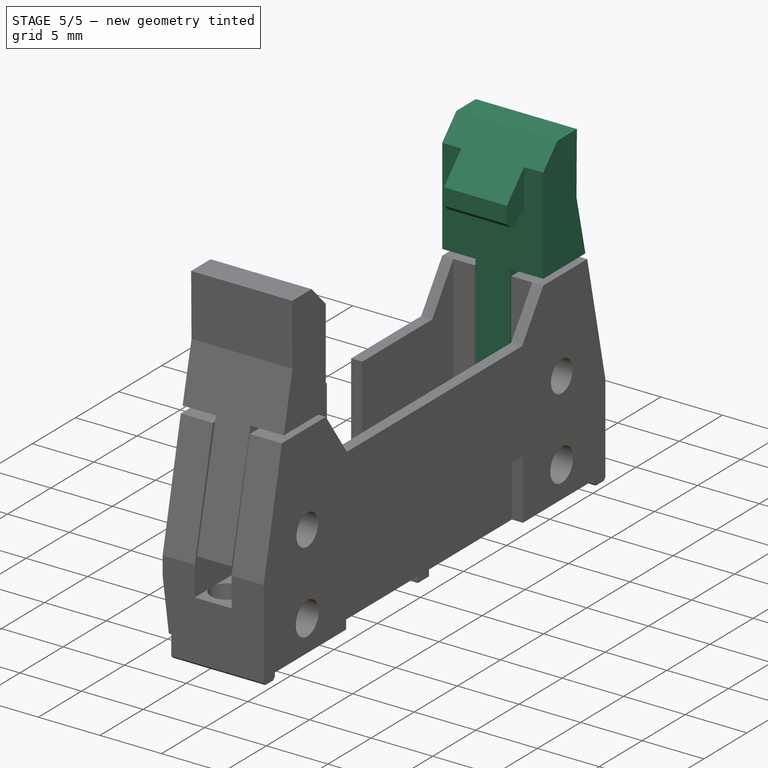
[diagram: stage 5 of 5 — iso view after this stage's code; geometry added in this stage tinted green]
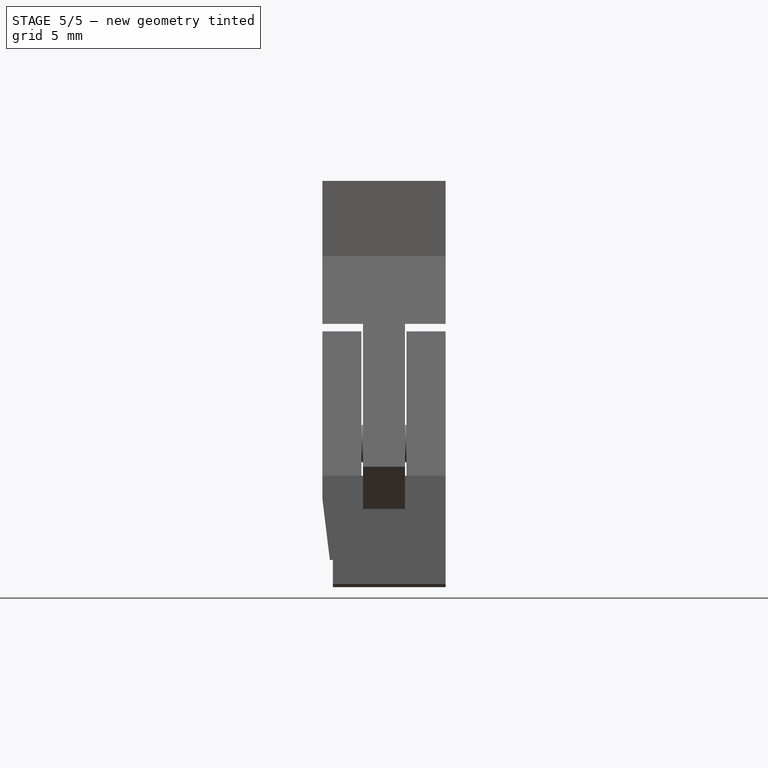
[diagram: stage 5 of 5 — front view after this stage's code; geometry added in this stage tinted green]
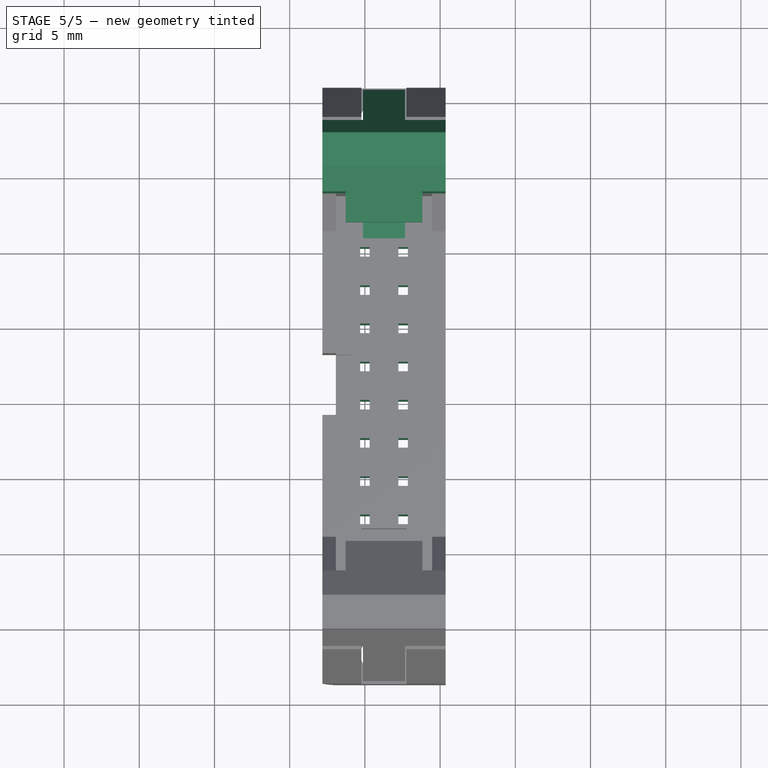
[diagram: stage 5 of 5 — top view after this stage's code; geometry added in this stage tinted green]
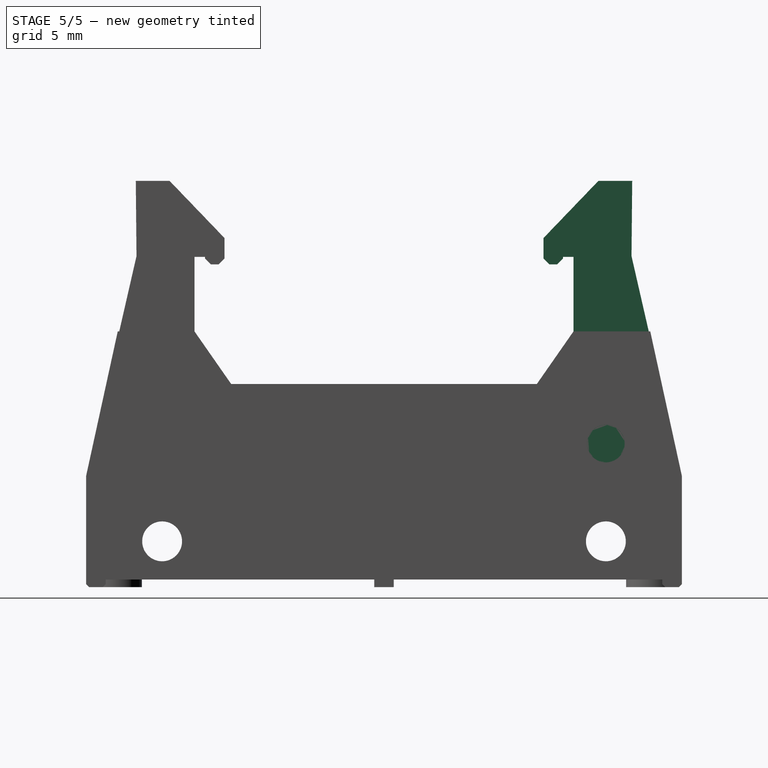
[diagram: stage 5 of 5 — right view after this stage's code; geometry added in this stage tinted green]
FEATURE [Sketcher::SketchObject] Sketch015
  ArcFitTolerance = 1e-06
  AttachmentSupport = -> [XY_Plane001]
  FullyConstrained = true
  MakeInternals = false
  MapMode = 5
  sketch-geometry (4):
    g0: LineSegment StartX=-0.3175 StartY=0.3175 StartZ=0 EndX=-0.3175 EndY=-0.3175 EndZ=0
    g1: LineSegment StartX=-0.3175 StartY=-0.3175 StartZ=0 EndX=0.3175 EndY=-0.3175 EndZ=0
    g2: LineSegment StartX=0.3175 StartY=-0.3175 StartZ=0 EndX=0.3175 EndY=0.3175 EndZ=0
    g3: LineSegment StartX=0.3175 StartY=0.3175 StartZ=0 EndX=-0.3175 EndY=0.3175 EndZ=0
  constraints (11):
    c: Coincident(g0,g1)
    c: Coincident(g1,g2)
    c: Coincident(g2,g3)
    c: Coincident(g3,g0)
    c: Vertical(g0)
    c: Vertical(g2)
    c: Horizontal(g1)
    c: Horizontal(g3)
    c: DistanceY(g0,g0) = 0.635
    c: Equal(g0,g3)
    c: Symmetric(g0,g2,g-1)
FEATURE [PartDesign::Pad] Pad001
  Direction = (0,0,1)
  Length = 13.5
  Length2 = 3.2
  Profile = -> Sketch015
  ReferenceAxis = -> Sketch015 [N_Axis]
  Suppressed = false
  Type = 4
FEATURE [PartDesign::Chamfer] Chamfer
  Angle = 45
  Base = -> Pad001 [Edge10,Edge12,Edge4,Edge7,Edge6,Edge9,Edge11,Edge3]
  BaseFeature = -> Pad001
  ChamferType = 1
  FlipDirection = false
  Size = 0.4
  Size2 = 0.2
  SupportTransform = false
  Suppressed = false
  UseAllEdges = false
FEATURE [PartDesign::Body] Body001
  AllowCompound = false
  Group = -> [Sketch015,Pad001,Chamfer]
  Origin = -> Origin001
  Tip = -> Chamfer
FEATURE [Part::FeaturePython] Array  label="Pins"  # Draft array (typed FeaturePython)
  Angle = 360
  ArrayType = 0
  Axis = (0,0,1)
  Base = -> Body001
  Center = (0,0,0)
  Count = 16
  Fuse = false
  IntervalAxis = (0,0,0)
  IntervalX = (2.54,0,0)
  IntervalY = (0,-2.54,0)
  IntervalZ = (0,0,100)
  NumberCircles = 3
  NumberPolar = 5
  NumberX = 2
  NumberY = 8
  NumberZ = 1
  RadialDistance = 50
  Symmetry = 1
  TangentialDistance = 25
  expr: .IntervalX.x = <<Master>>.pin_pitch
  expr: .IntervalY.y = -<<Master>>.pin_pitch
  expr: NumberY = <<Master>>.pins_row
FEATURE [PartDesign::FeatureBase] Clone
  BaseFeature = -> Array
  Suppressed = false
FEATURE [Part::Compound] Compound
  Links = -> [Body003,Part__Mirroring]
FEATURE [PartDesign::Body] Body
  AllowCompound = false
  Group = -> [DatumLine,DatumPlane,DatumPlane001,DatumPlane002,Sketch,Pad,Sketch001,Pocket,Sketch002,Pocket001,Mirrored,Sketch003,Pocket002,Mirrored001,Sketch004,Pocket003,Sketch005,Pocket004,Sketch006,Pocket005,Mirrored002,Sketch014,Pocket006,Mirrored003,Sketch011,Pocket007,Sketch007,Pocket008,Sketch009,Pocket009,Mirrored004,Sketch010,Pocket010,Chamfer002,Chamfer003]
  Origin = -> Origin
  Tip = -> Chamfer003
FEATURE [Part::Cut] Cut
  Base = -> Body
  Tool = -> Body002
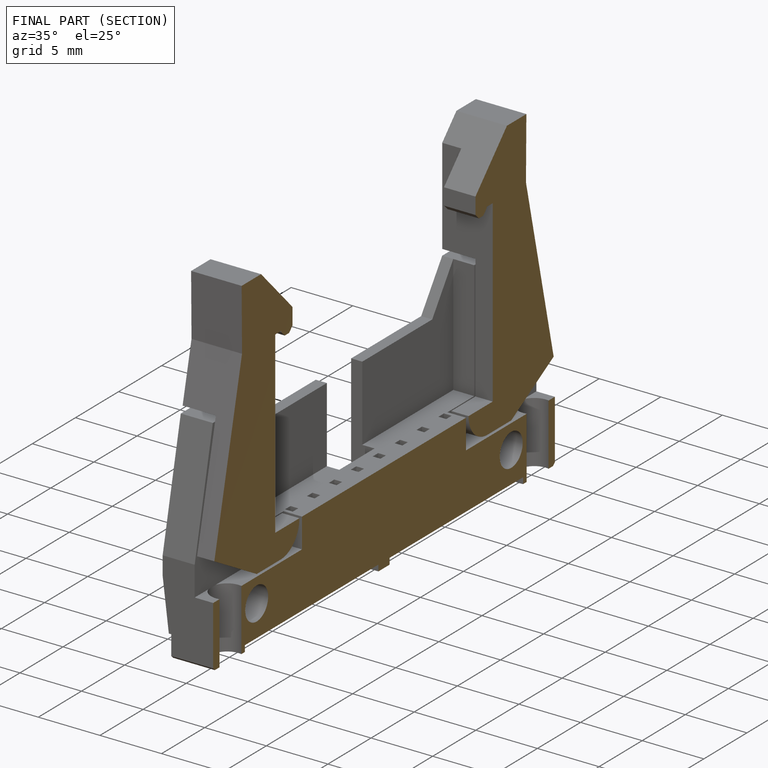
[diagram: finished part — half-section view (interior)]
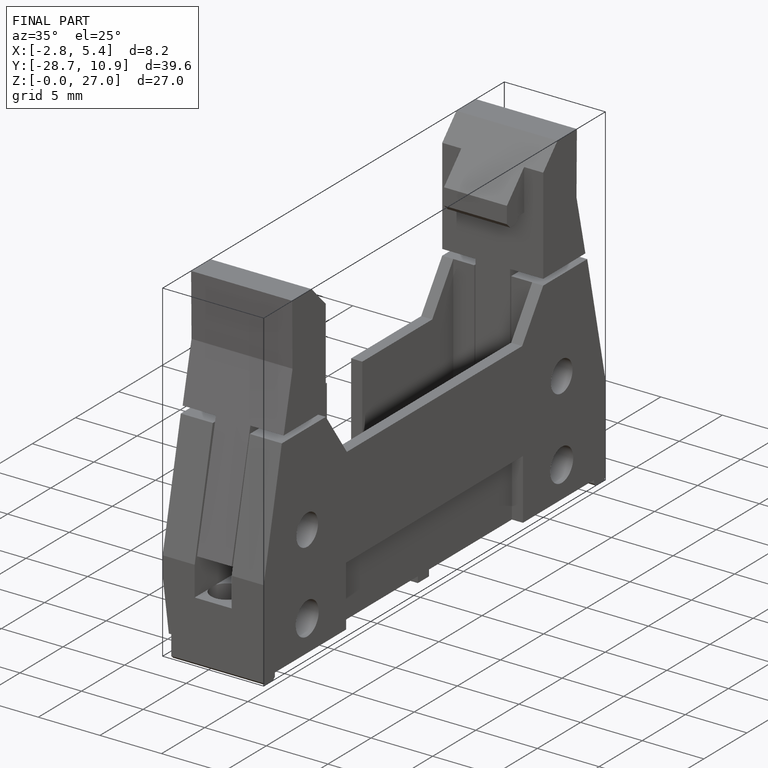
[diagram: finished part — iso view with bounding-box wireframe]
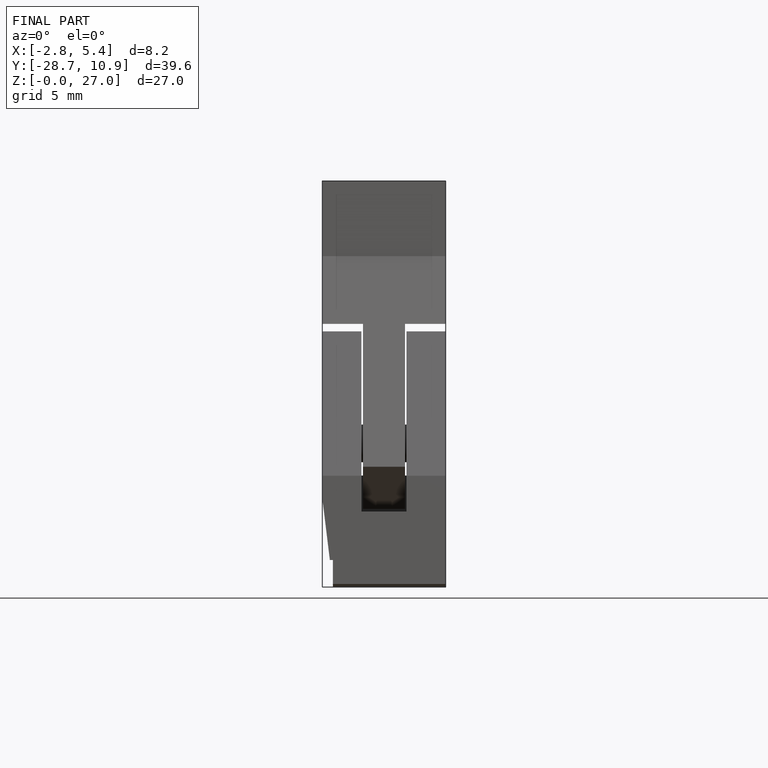
[diagram: finished part — front view with bounding-box wireframe]
